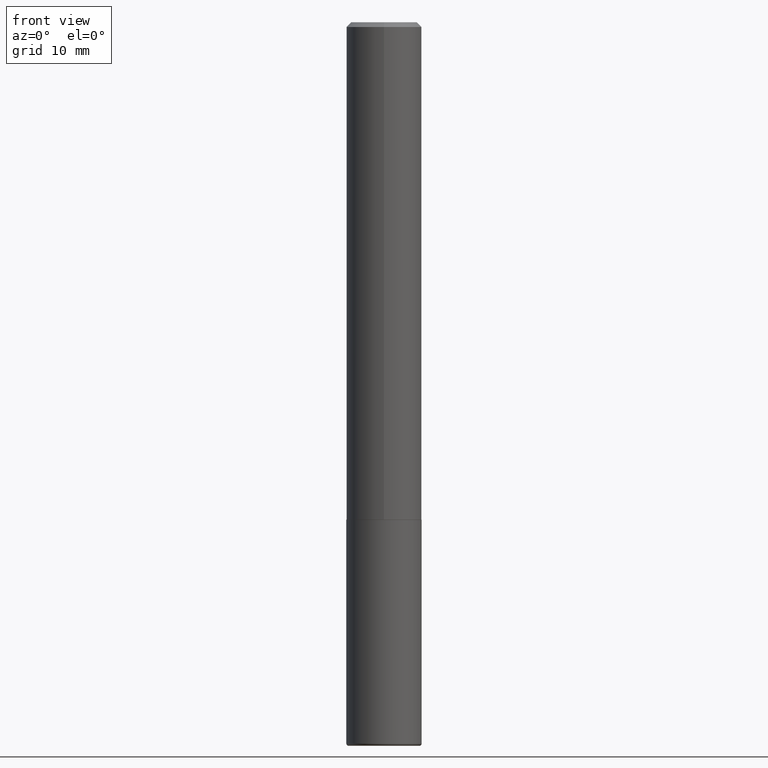
[diagram: clean part render]
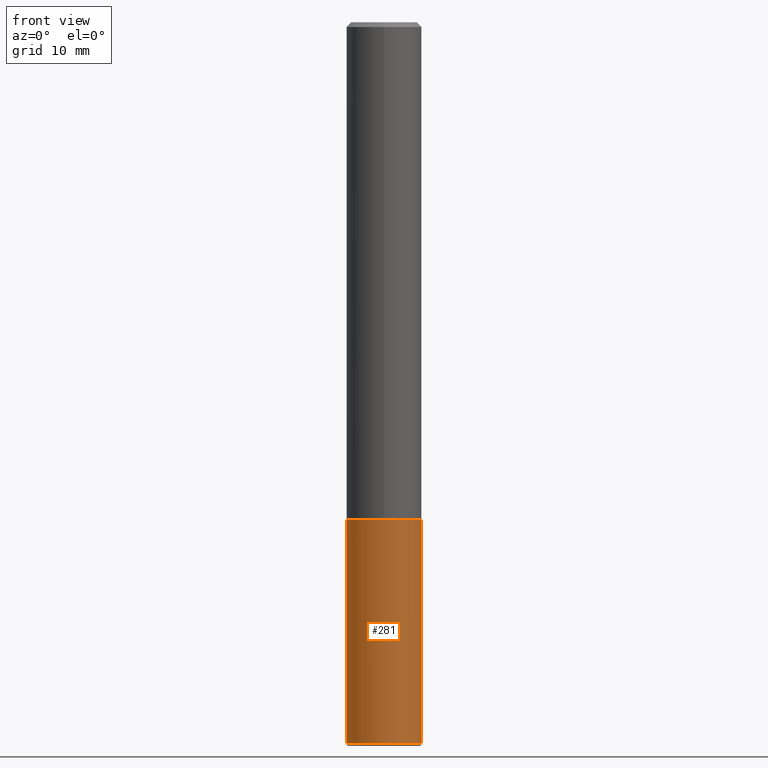
[diagram: same view with one face highlighted and labeled with its STEP entity id]
A machine part, front view. The second image highlights one B-rep face of the part: STEP entity #281.
In plain terms, the highlighted cylindrical surface (partial cylindrical patch) has radius 3.9688 mm, axis along (-0, 0, 1).
Its self-contained STEP definition (entity closure, byte-faithful):
#11 = CARTESIAN_POINT ( 'NONE',  ( -0.1562500000000000000, -7.710131707627340889E-15, -2.062500000000000000 ) ) ;
#22 = AXIS2_PLACEMENT_3D ( 'NONE', #231, #394, #110 ) ;
#26 = VERTEX_POINT ( 'NONE', #158 ) ;
#87 = CARTESIAN_POINT ( 'NONE',  ( 0.1562500000000000000, -1.091087918388479174E-15, 7.619026212181150377E-30 ) ) ;
#110 = DIRECTION ( 'NONE',  ( 1.000000000000000000, -6.982962677686266711E-15, 4.876176775795936353E-29 ) ) ;
#115 = EDGE_CURVE ( 'NONE', #151, #282, #320, .T. ) ;
#117 = EDGE_LOOP ( 'NONE', ( #325, #138, #407, #283 ) ) ;
#120 = CARTESIAN_POINT ( 'NONE',  ( -0.1562500000000000000, 1.110223024625156540E-15, -7.685836078523291160E-30 ) ) ;
#133 = CARTESIAN_POINT ( 'NONE',  ( 0.1562500000000000000, -8.292268179752468540E-15, -2.062500000000000000 ) ) ;
#135 = EDGE_CURVE ( 'NONE', #26, #282, #217, .T. ) ;
#138 = ORIENTED_EDGE ( 'NONE', *, *, #356, .T. ) ;
#148 = EDGE_CURVE ( 'NONE', #403, #151, #174, .T. ) ;
#151 = VERTEX_POINT ( 'NONE', #11 ) ;
#158 = CARTESIAN_POINT ( 'NONE',  ( 0.1562500000000000278, -1.153061712152948940E-14, -2.990000000000000657 ) ) ;
#174 = LINE ( 'NONE', #120, #352 ) ;
#176 = DIRECTION ( 'NONE',  ( -2.445468806185136877E-29, 3.491481338843145188E-15, 1.000000000000000000 ) ) ;
#181 = DIRECTION ( 'NONE',  ( 1.000000000000000000, -6.982962677686269077E-15, 0.000000000000000000 ) ) ;
#194 = DIRECTION ( 'NONE',  ( 1.000000000000000000, -6.982962677686262766E-15, 0.000000000000000000 ) ) ;
#203 = CYLINDRICAL_SURFACE ( 'NONE', #22, 0.1562500000000000000 ) ;
#217 = LINE ( 'NONE', #87, #245 ) ;
#231 = CARTESIAN_POINT ( 'NONE',  ( 0.000000000000000000, 0.000000000000000000, 0.000000000000000000 ) ) ;
#244 = CARTESIAN_POINT ( 'NONE',  ( 5.043779412756844791E-29, -7.201180261363988578E-15, -2.062500000000000000 ) ) ;
#245 = VECTOR ( 'NONE', #176, 39.37007874015748143 ) ;
#263 = CIRCLE ( 'NONE', #399, 0.1562500000000000000 ) ;
#268 = FACE_OUTER_BOUND ( 'NONE', #117, .T. ) ;
#277 = CARTESIAN_POINT ( 'NONE',  ( -0.1562500000000000278, -9.329306178515851319E-15, -2.990000000000000657 ) ) ;
#280 = DIRECTION ( 'NONE',  ( -2.445468806185136877E-29, 3.491481338843145188E-15, 1.000000000000000000 ) ) ;
#281 = ADVANCED_FACE ( 'NONE', ( #268 ), #203, .T. ) ;
#282 = VERTEX_POINT ( 'NONE', #133 ) ;
#283 = ORIENTED_EDGE ( 'NONE', *, *, #115, .F. ) ;
#320 = CIRCLE ( 'NONE', #364, 0.1562500000000000000 ) ;
#325 = ORIENTED_EDGE ( 'NONE', *, *, #148, .F. ) ;
#352 = VECTOR ( 'NONE', #280, 39.37007874015748143 ) ;
#356 = EDGE_CURVE ( 'NONE', #403, #26, #263, .T. ) ;
#364 = AXIS2_PLACEMENT_3D ( 'NONE', #244, #367, #181 ) ;
#367 = DIRECTION ( 'NONE',  ( -2.445468806185136597E-29, 3.491481338843145583E-15, 1.000000000000000000 ) ) ;
#375 = DIRECTION ( 'NONE',  ( -2.445468806185136597E-29, 3.491481338843145583E-15, 1.000000000000000000 ) ) ;
#387 = CARTESIAN_POINT ( 'NONE',  ( 7.311951730493559366E-29, -1.043952920314100786E-14, -2.990000000000000657 ) ) ;
#394 = DIRECTION ( 'NONE',  ( -2.445468806185136597E-29, 3.491481338843145583E-15, 1.000000000000000000 ) ) ;
#399 = AXIS2_PLACEMENT_3D ( 'NONE', #387, #375, #194 ) ;
#403 = VERTEX_POINT ( 'NONE', #277 ) ;
#407 = ORIENTED_EDGE ( 'NONE', *, *, #135, .T. ) ;